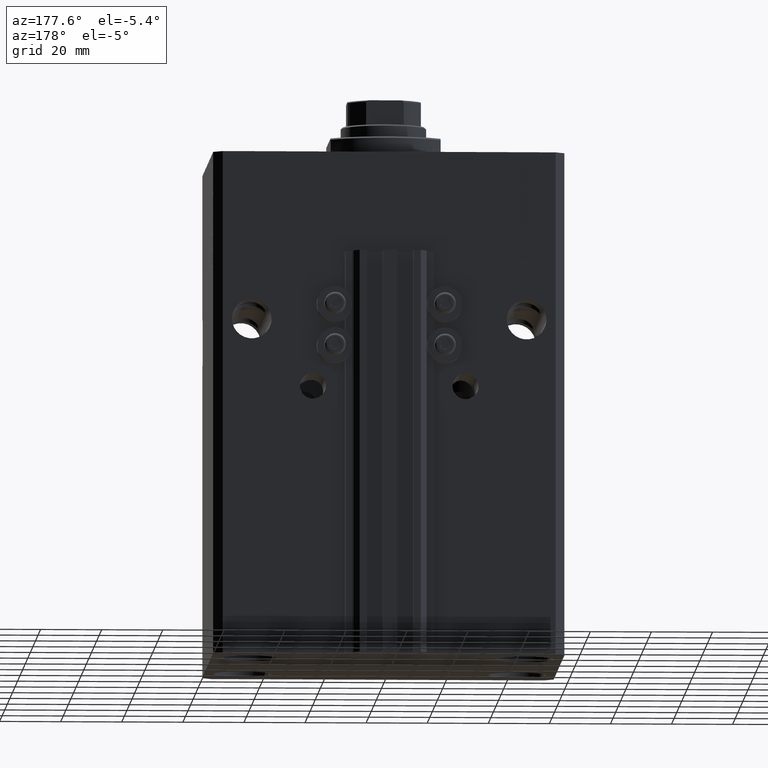
[diagram: clean part render]
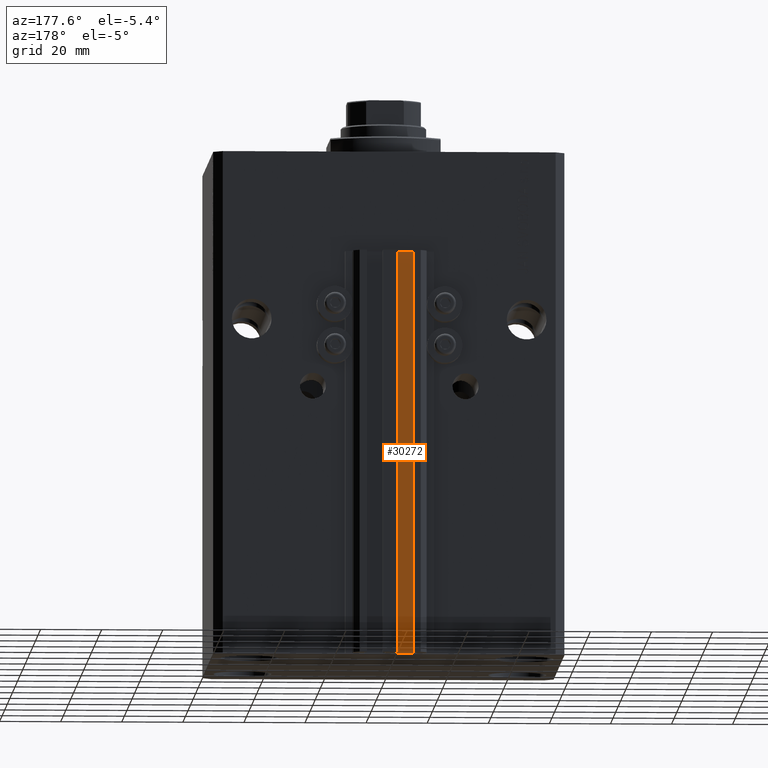
[diagram: same view with one face highlighted and labeled with its STEP entity id]
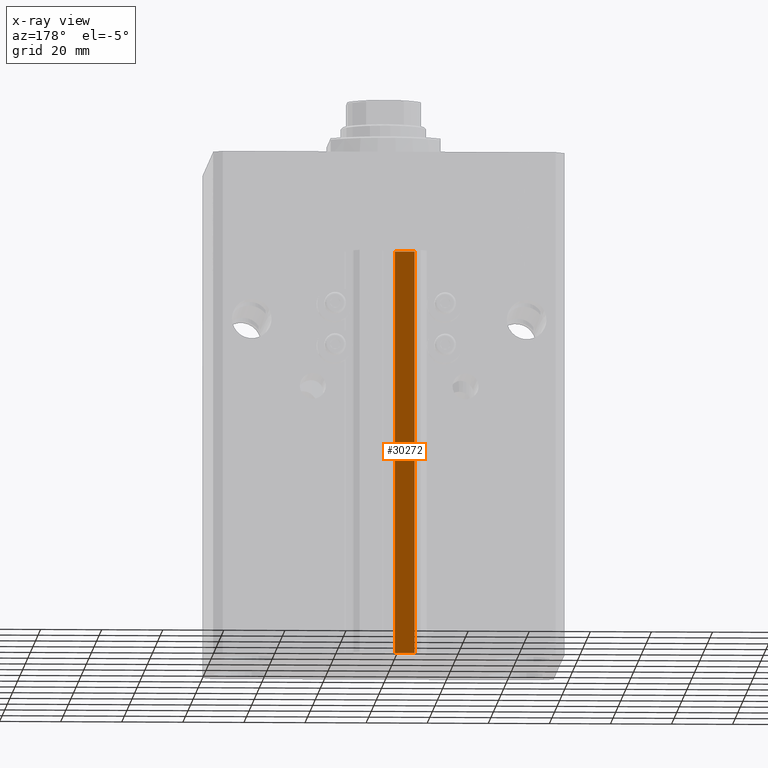
[diagram: x-ray of the same camera — body ghosted, the highlighted face saturated]
A machine part, auxiliary view. The second image highlights one B-rep face of the part: STEP entity #30272.
The next image is the same camera in x-ray: the body ghosted, the highlighted face saturated — about 0% of this face is hidden behind the body in this view.
In plain terms, the highlighted planar face has unit normal (0, 1, 0).
Its self-contained STEP definition (entity closure, byte-faithful):
#216 = EDGE_CURVE ( 'NONE', #34433, #46232, #20522, .T. ) ;
#264 = VERTEX_POINT ( 'NONE', #22690 ) ;
#2264 = CARTESIAN_POINT ( 'NONE',  ( -1.800000000000000933, 46.99999999999999289, -165.0000000000000000 ) ) ;
#3212 = CARTESIAN_POINT ( 'NONE',  ( -1.800000000000000933, 46.99999999999999289, -33.00000000000000000 ) ) ;
#3697 = EDGE_LOOP ( 'NONE', ( #36106, #40986, #16226, #32076 ) ) ;
#7334 = DIRECTION ( 'NONE',  ( 0.000000000000000000, 1.000000000000000000, -0.000000000000000000 ) ) ;
#9087 = AXIS2_PLACEMENT_3D ( 'NONE', #11312, #7334, #40976 ) ;
#10182 = CARTESIAN_POINT ( 'NONE',  ( -8.199999999999997513, 46.99999999999999289, -165.0000000000000000 ) ) ;
#11312 = CARTESIAN_POINT ( 'NONE',  ( -1.800000000000000933, 46.99999999999999289, -165.0000000000000000 ) ) ;
#15152 = LINE ( 'NONE', #3212, #42456 ) ;
#16226 = ORIENTED_EDGE ( 'NONE', *, *, #216, .T. ) ;
#20037 = CARTESIAN_POINT ( 'NONE',  ( -1.800000000000000933, 46.99999999999999289, -33.00000000000000000 ) ) ;
#20522 = LINE ( 'NONE', #32468, #39128 ) ;
#22591 = CARTESIAN_POINT ( 'NONE',  ( -8.199999999999997513, 46.99999999999999289, -165.0000000000000000 ) ) ;
#22690 = CARTESIAN_POINT ( 'NONE',  ( -8.199999999999997513, 46.99999999999999289, -33.00000000000000000 ) ) ;
#24935 = LINE ( 'NONE', #2264, #40971 ) ;
#30272 = ADVANCED_FACE ( 'NONE', ( #44952 ), #38219, .T. ) ;
#31751 = EDGE_CURVE ( 'NONE', #34433, #48601, #24935, .T. ) ;
#32076 = ORIENTED_EDGE ( 'NONE', *, *, #40555, .T. ) ;
#32468 = CARTESIAN_POINT ( 'NONE',  ( -1.800000000000000933, 46.99999999999999289, -165.0000000000000000 ) ) ;
#34433 = VERTEX_POINT ( 'NONE', #47129 ) ;
#36106 = ORIENTED_EDGE ( 'NONE', *, *, #45989, .F. ) ;
#37841 = DIRECTION ( 'NONE',  ( 0.000000000000000000, 0.000000000000000000, 1.000000000000000000 ) ) ;
#38219 = PLANE ( 'NONE',  #9087 ) ;
#39128 = VECTOR ( 'NONE', #47418, 1000.000000000000000 ) ;
#40555 = EDGE_CURVE ( 'NONE', #46232, #264, #44317, .T. ) ;
#40971 = VECTOR ( 'NONE', #47357, 1000.000000000000000 ) ;
#40976 = DIRECTION ( 'NONE',  ( 0.000000000000000000, 0.000000000000000000, 1.000000000000000000 ) ) ;
#40986 = ORIENTED_EDGE ( 'NONE', *, *, #31751, .F. ) ;
#41580 = DIRECTION ( 'NONE',  ( -1.000000000000000000, 0.000000000000000000, 0.000000000000000000 ) ) ;
#42456 = VECTOR ( 'NONE', #41580, 1000.000000000000000 ) ;
#43156 = VECTOR ( 'NONE', #37841, 1000.000000000000000 ) ;
#44317 = LINE ( 'NONE', #10182, #43156 ) ;
#44952 = FACE_OUTER_BOUND ( 'NONE', #3697, .T. ) ;
#45989 = EDGE_CURVE ( 'NONE', #48601, #264, #15152, .T. ) ;
#46232 = VERTEX_POINT ( 'NONE', #22591 ) ;
#47129 = CARTESIAN_POINT ( 'NONE',  ( -1.800000000000000933, 46.99999999999999289, -165.0000000000000000 ) ) ;
#47357 = DIRECTION ( 'NONE',  ( 0.000000000000000000, 0.000000000000000000, 1.000000000000000000 ) ) ;
#47418 = DIRECTION ( 'NONE',  ( -1.000000000000000000, 0.000000000000000000, 0.000000000000000000 ) ) ;
#48601 = VERTEX_POINT ( 'NONE', #20037 ) ;